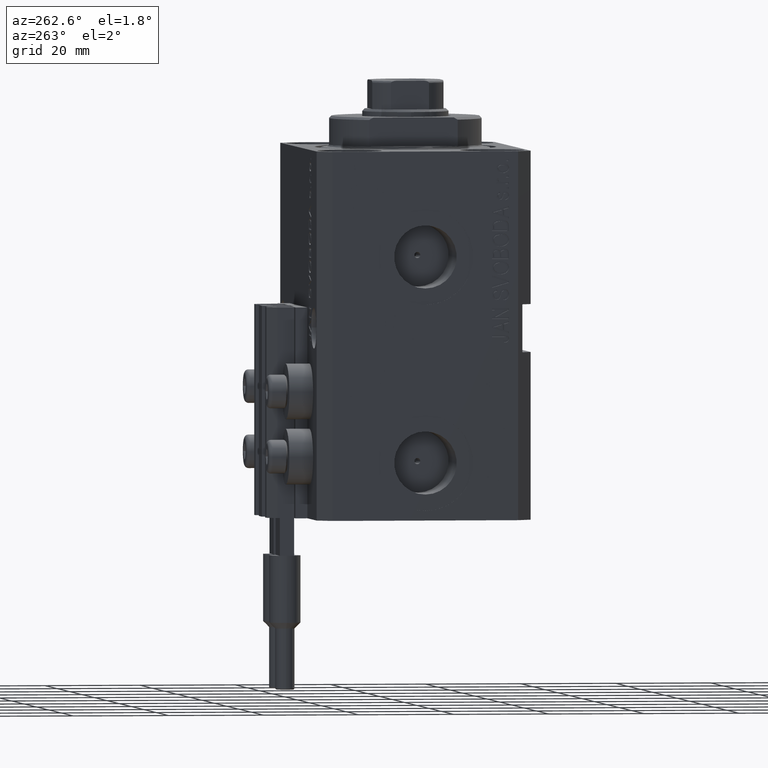
[diagram: clean part render]
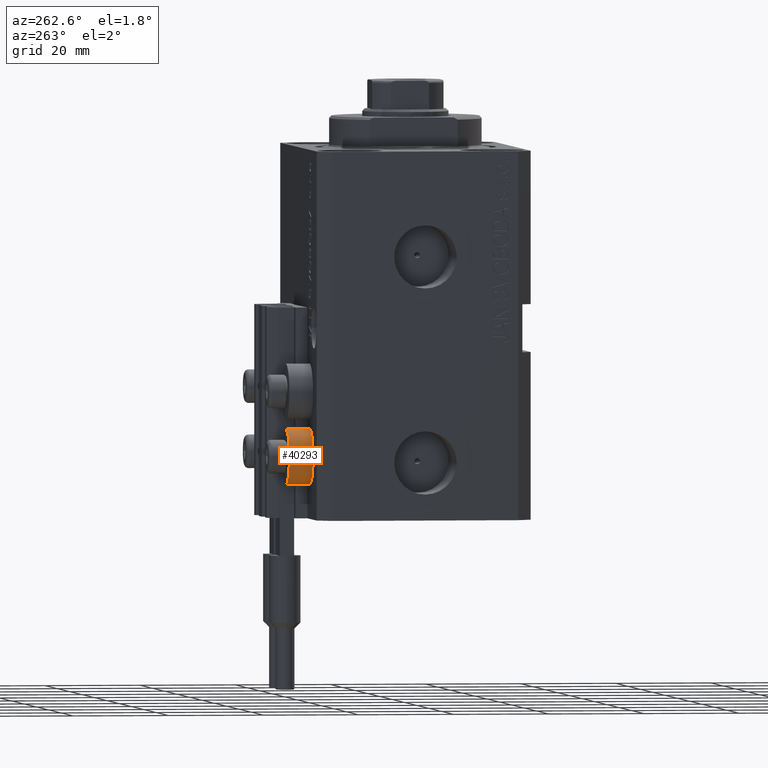
[diagram: same view with one face highlighted and labeled with its STEP entity id]
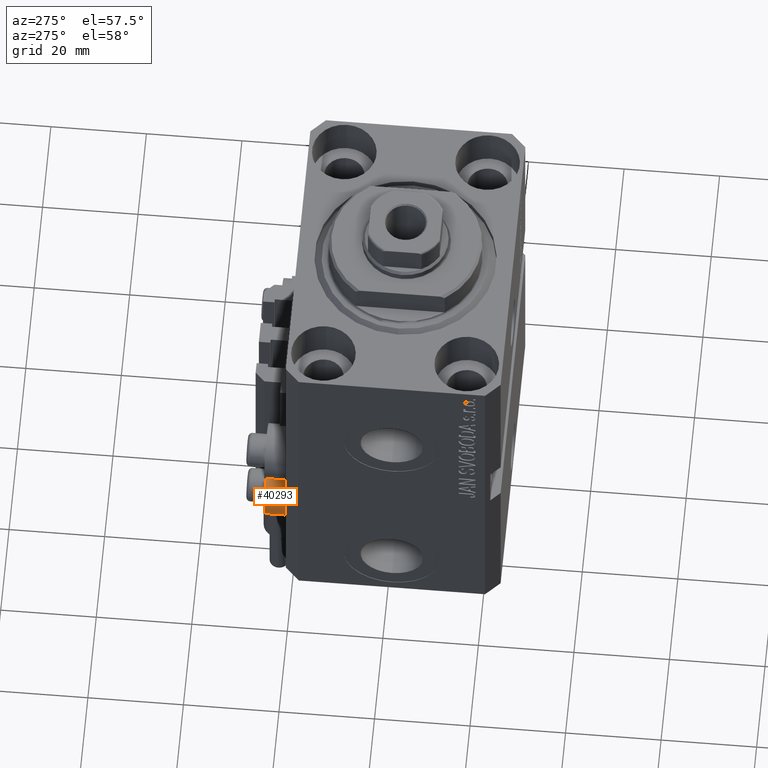
[diagram: same view with one face highlighted and labeled with its STEP entity id]
A machine part, auxiliary view. The second image highlights one B-rep face of the part: STEP entity #40293.
A second angle (auxiliary view) of the same face is appended — the face is thin or edge-on in the first view.
In plain terms, the highlighted cylindrical surface (edge-blend (fillet) strip) has radius 5.8 mm, axis along (0, 1, 0).
Its self-contained STEP definition (entity closure, byte-faithful):
#44 = DIRECTION ( 'NONE',  ( 0.000000000000000000, 1.000000000000000000, 0.000000000000000000 ) ) ;
#815 = EDGE_CURVE ( 'NONE', #2790, #28868, #29160, .T. ) ;
#824 = CARTESIAN_POINT ( 'NONE',  ( -18.00000000000000355, 22.49999999999951328, -69.79999999999999716 ) ) ;
#2790 = VERTEX_POINT ( 'NONE', #824 ) ;
#3632 = EDGE_LOOP ( 'NONE', ( #31021, #39889, #6660, #41720 ) ) ;
#5963 = VERTEX_POINT ( 'NONE', #36833 ) ;
#6660 = ORIENTED_EDGE ( 'NONE', *, *, #37569, .T. ) ;
#8133 = DIRECTION ( 'NONE',  ( -0.000000000000000000, -1.000000000000000000, -0.000000000000000000 ) ) ;
#8853 = EDGE_CURVE ( 'NONE', #19283, #2790, #15517, .T. ) ;
#11078 = AXIS2_PLACEMENT_3D ( 'NONE', #23131, #15358, #30175 ) ;
#13686 = CARTESIAN_POINT ( 'NONE',  ( -18.00000000000000355, 27.49999999996051514, -58.20000000000000284 ) ) ;
#15358 = DIRECTION ( 'NONE',  ( -0.000000000000000000, -1.000000000000000000, -0.000000000000000000 ) ) ;
#15517 = CIRCLE ( 'NONE', #39510, 5.799999999999999822 ) ;
#17086 = CARTESIAN_POINT ( 'NONE',  ( -18.00000000000000355, 27.49999999996051514, -69.79999999999999716 ) ) ;
#19283 = VERTEX_POINT ( 'NONE', #21273 ) ;
#19386 = CYLINDRICAL_SURFACE ( 'NONE', #20493, 5.799999999999999822 ) ;
#19529 = DIRECTION ( 'NONE',  ( 0.000000000000000000, 0.000000000000000000, -1.000000000000000000 ) ) ;
#20493 = AXIS2_PLACEMENT_3D ( 'NONE', #34170, #33704, #44636 ) ;
#21273 = CARTESIAN_POINT ( 'NONE',  ( -18.00000000000000355, 22.49999999999951328, -58.20000000000000284 ) ) ;
#23131 = CARTESIAN_POINT ( 'NONE',  ( -18.00000000000000355, 27.49999999996051514, -64.00000000000000000 ) ) ;
#25519 = CARTESIAN_POINT ( 'NONE',  ( -18.00000000000000355, 27.49999999996051514, -69.79999999999999716 ) ) ;
#28868 = VERTEX_POINT ( 'NONE', #17086 ) ;
#29160 = LINE ( 'NONE', #25519, #44063 ) ;
#29787 = VECTOR ( 'NONE', #40367, 1000.000000000000000 ) ;
#30175 = DIRECTION ( 'NONE',  ( 0.000000000000000000, 0.000000000000000000, -1.000000000000000000 ) ) ;
#31021 = ORIENTED_EDGE ( 'NONE', *, *, #8853, .F. ) ;
#33704 = DIRECTION ( 'NONE',  ( 0.000000000000000000, 1.000000000000000000, 0.000000000000000000 ) ) ;
#34170 = CARTESIAN_POINT ( 'NONE',  ( -18.00000000000000355, 27.49999999996051514, -64.00000000000000000 ) ) ;
#35095 = CIRCLE ( 'NONE', #11078, 5.799999999999999822 ) ;
#36833 = CARTESIAN_POINT ( 'NONE',  ( -18.00000000000000355, 27.49999999996051514, -58.20000000000000284 ) ) ;
#37569 = EDGE_CURVE ( 'NONE', #5963, #28868, #35095, .T. ) ;
#37802 = FACE_OUTER_BOUND ( 'NONE', #3632, .T. ) ;
#39510 = AXIS2_PLACEMENT_3D ( 'NONE', #41359, #8133, #19529 ) ;
#39889 = ORIENTED_EDGE ( 'NONE', *, *, #44486, .T. ) ;
#40293 = ADVANCED_FACE ( 'NONE', ( #37802 ), #19386, .T. ) ;
#40367 = DIRECTION ( 'NONE',  ( 0.000000000000000000, 1.000000000000000000, 0.000000000000000000 ) ) ;
#41359 = CARTESIAN_POINT ( 'NONE',  ( -18.00000000000000355, 22.49999999999951328, -64.00000000000000000 ) ) ;
#41720 = ORIENTED_EDGE ( 'NONE', *, *, #815, .F. ) ;
#44063 = VECTOR ( 'NONE', #44, 1000.000000000000000 ) ;
#44260 = LINE ( 'NONE', #13686, #29787 ) ;
#44486 = EDGE_CURVE ( 'NONE', #19283, #5963, #44260, .T. ) ;
#44636 = DIRECTION ( 'NONE',  ( 0.000000000000000000, 0.000000000000000000, -1.000000000000000000 ) ) ;